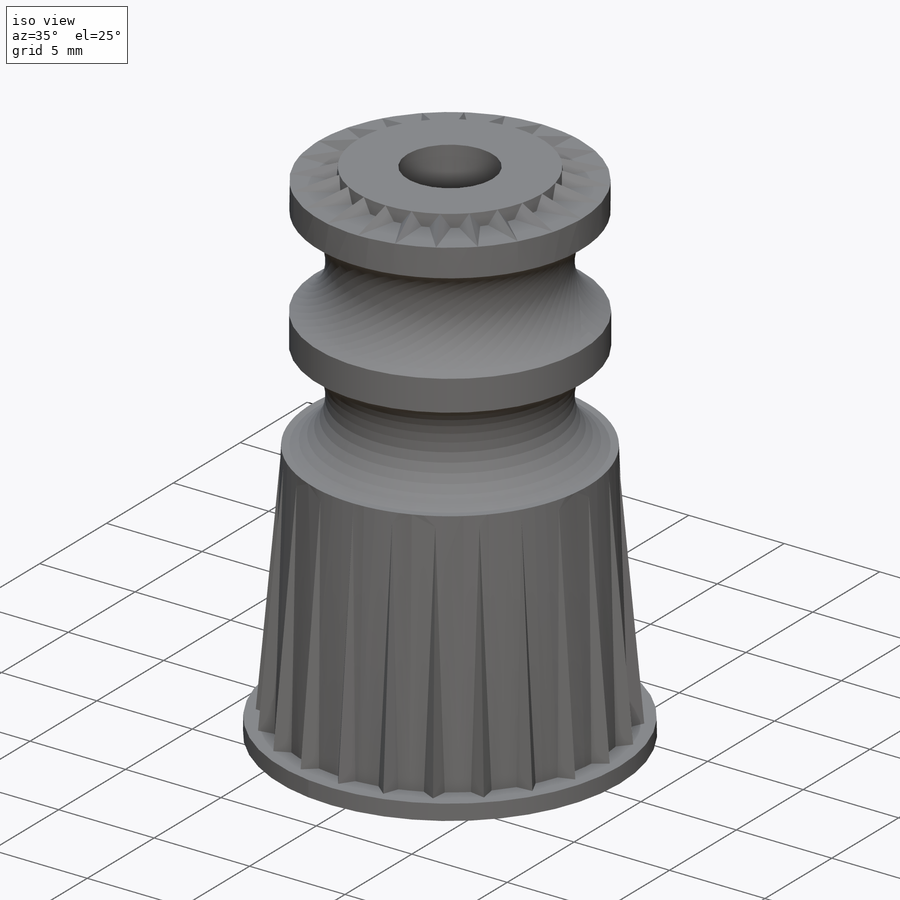
[diagram: iso view]
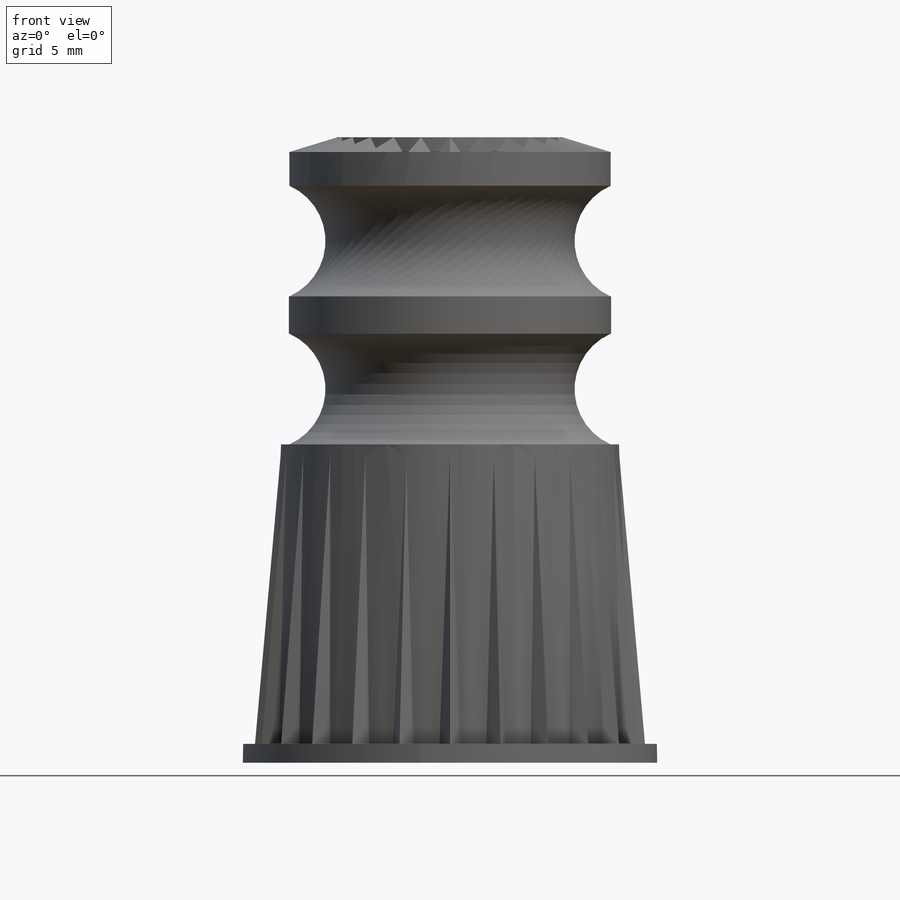
[diagram: front view]
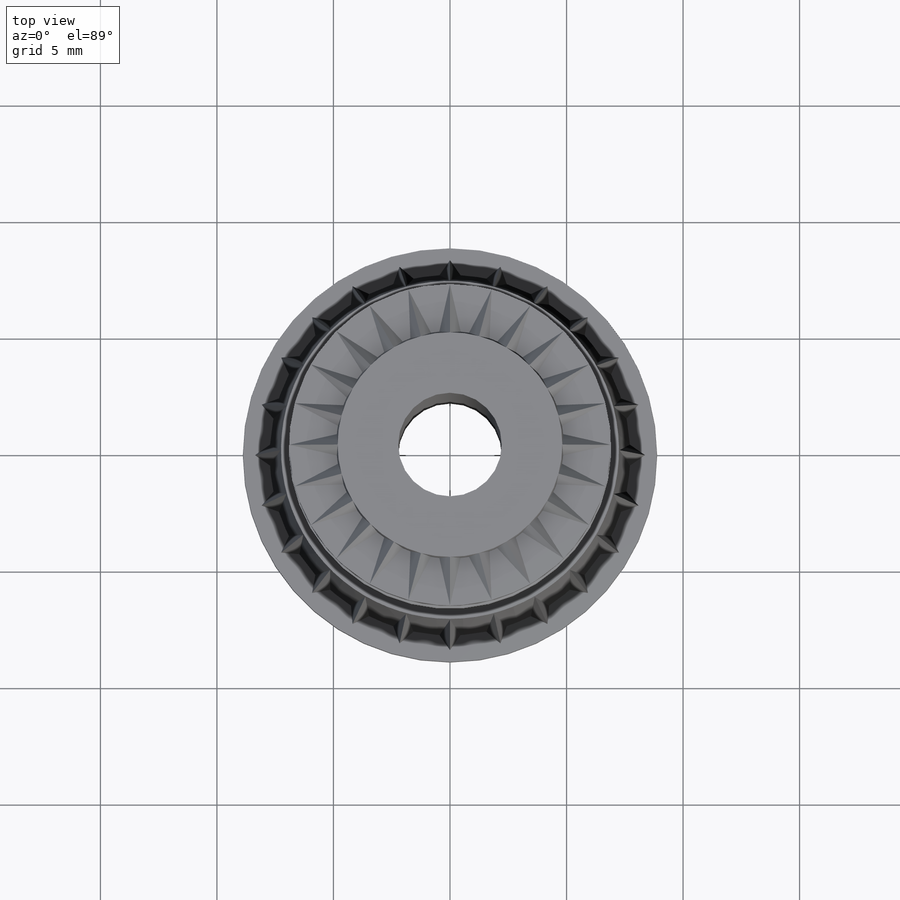
[diagram: top view]
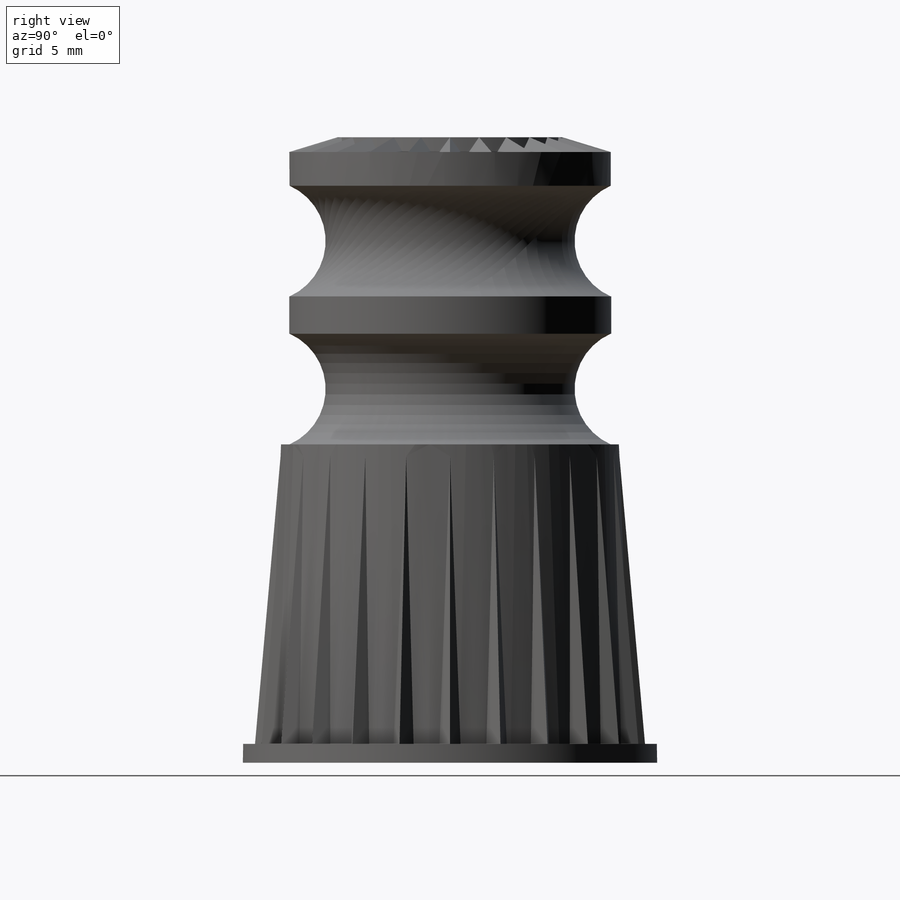
[diagram: right view]
SOLIDWORKS PART (.sldprt)
format: sldprt  version: not decoded by parser v0  size: 480,256 bytes
history: native  units: mm
features: sketch x11, plane x3, extrude x2, sweep x2, pattern_circular x2, material x1, revolve x1, cut_extrude x1, cut_revolve x1 (+12 scaffold rows collapsed)
feature tree (36):
  scaffold x12  (default folders/planes/origin — collapsed)
  material  "CA"
  sketch  "Sketch1"  dims[D1=17.78mm]
  extrude  "Boss-Extrude1"  Depth=0.8128mm
  plane  "Plane1"  Offset=13.6652mm
  sketch  "Sketch2"  dims[D1=14.5034mm]
  sketch  "Sketch3"  dims[D1=15.4686mm]
  sketch  "Sketch4"  dims[c1.D1=0.508mm c1.D2=0.508mm c2.D1=0.508mm]
  plane  "Plane2"
  sketch  "Sketch14"  dims[c1.D1=1.016mm c1.D2=1.016mm c2.D2=70.0deg]
  sweep  "Sweep1"
  sketch  "Sketch7"  dims[c1.D4=~3.874285mm c1.D1=0.762mm c1.D2=0.0254mm c1.D3=1.9812mm c2.D4=10.6934mm c2.D1=13.7922mm c2.D5=4.7498mm c2.D3=1.4478mm c2.D6=4.7498mm c2.D7=1.6002mm]
  pattern_circular  "CirPattern3"  Count=24 Angle=360deg
  revolve  "Revolve1"  Angle=360deg
  sketch  "Sketch15"  dims[D1=9.7536mm]
  extrude  "Boss-Extrude4"  Depth=0.635mm
  sketch  "Sketch16"
  plane  "Plane3"
  sketch  "Sketch17"  dims[c1.D1=~0.699716mm c2.D1=75.0deg c2.D2=0.762mm]
  sweep  "Sweep2"
  pattern_circular  "CirPattern4"  Count=24 Angle=360deg
  sketch  "Sketch18"  dims[D1=4.445mm]
  cut_extrude  "Cut-Extrude1"  [1 undecoded]
  sketch  "Sketch19"  dims[c1.D1=6.4008mm c1.D2=~13.072786mm c2.D2=1.0deg c2.D3=1.524mm c2.D4=2.54mm c2.D5=12.1412mm c3.D5=5.0deg c3.D6=3.2512mm]
  cut_revolve  "Cut-Revolve1"  Angle=360deg
decode coverage: 16 of 20 modeling features carry decoded parameters
note: ~ marks probable driven/reference dimensions
note: 1 parameter value undecoded
note: suppression state not decoded; provenance and decode notes live in map.json
